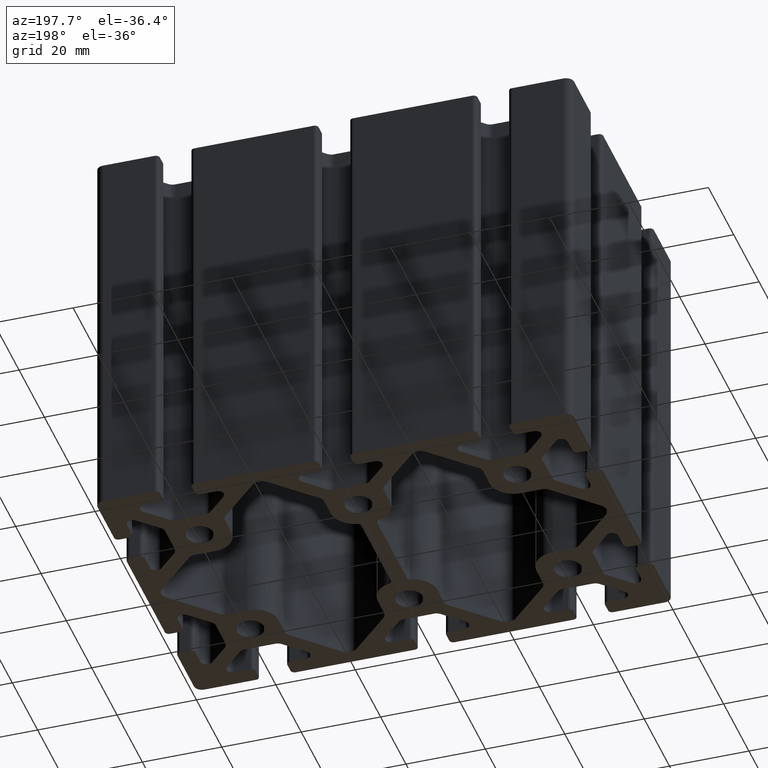
[diagram: clean part render]
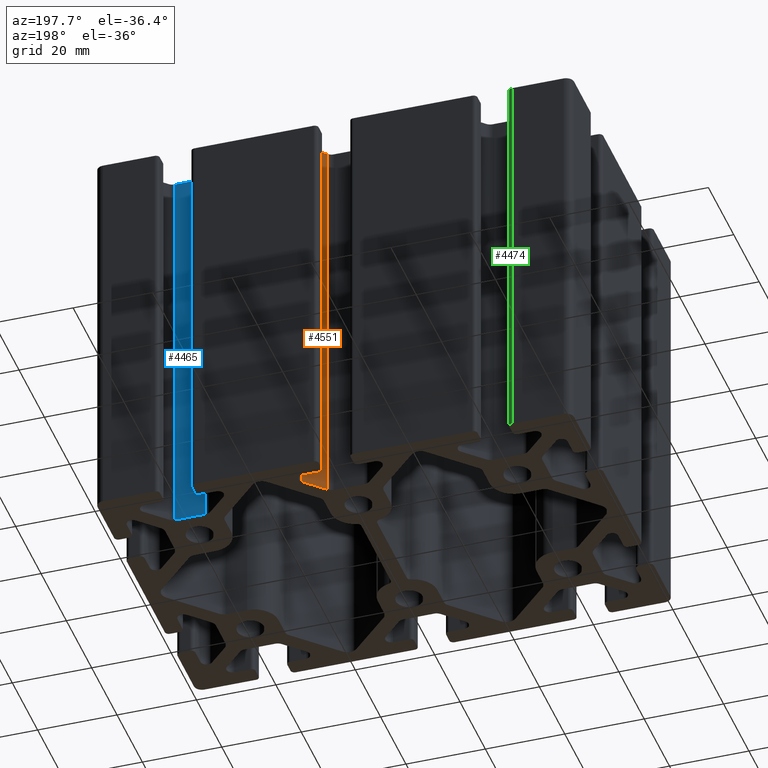
[diagram: same view with three faces highlighted in distinct colors, each labeled with its STEP entity id]
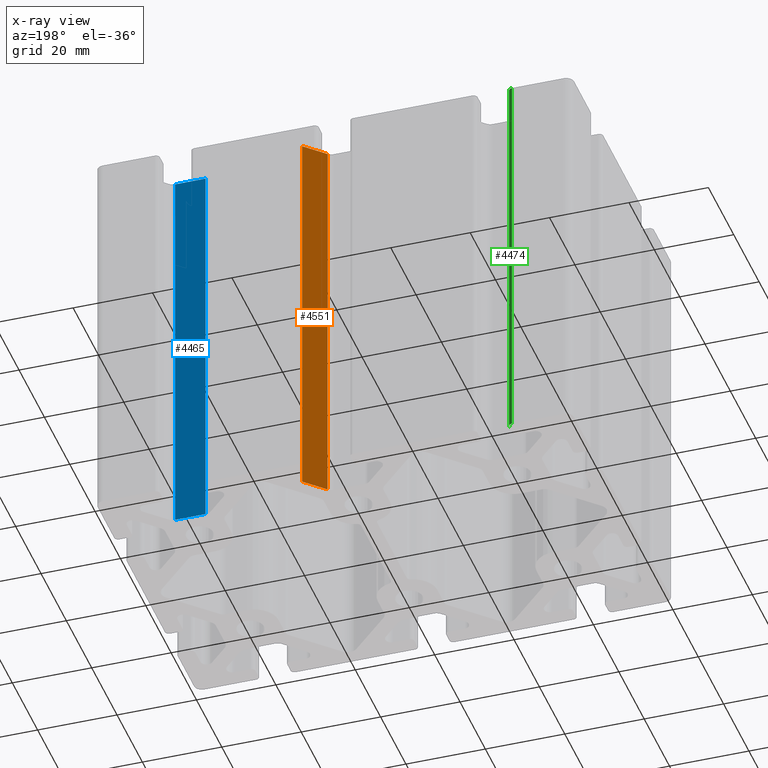
[diagram: x-ray of the same camera — body ghosted, the three highlighted faces saturated]
A machine part, auxiliary view with three faces highlighted in distinct colors.
The next image is the same camera in x-ray (body ghosted, the three faces saturated) — at least one of them is partly hidden behind the body in this view.
Their STEP definitions:

[orange] entity #4551 — the highlighted planar face has unit normal (0.7071, -0.7071, 0).
#108=PLANE('',#4955);
#305=FACE_OUTER_BOUND('',#540,.T.);
#540=EDGE_LOOP('',(#3525,#3526,#3527,#3528));
#936=LINE('',#7444,#1380);
#937=LINE('',#7448,#1381);
#938=LINE('',#7450,#1382);
#939=LINE('',#7451,#1383);
#1380=VECTOR('',#6054,100.);
#1381=VECTOR('',#6059,6.8639610306789);
#1382=VECTOR('',#6060,100.);
#1383=VECTOR('',#6061,6.8639610306789);
#2087=VERTEX_POINT('',#7441);
#2088=VERTEX_POINT('',#7443);
#2089=VERTEX_POINT('',#7447);
#2090=VERTEX_POINT('',#7449);
#2693=EDGE_CURVE('',#2088,#2087,#936,.T.);
#2695=EDGE_CURVE('',#2089,#2087,#937,.T.);
#2696=EDGE_CURVE('',#2090,#2089,#938,.T.);
#2697=EDGE_CURVE('',#2088,#2090,#939,.T.);
#3525=ORIENTED_EDGE('',*,*,#2695,.F.);
#3526=ORIENTED_EDGE('',*,*,#2696,.F.);
#3527=ORIENTED_EDGE('',*,*,#2697,.F.);
#3528=ORIENTED_EDGE('',*,*,#2693,.T.);
#4551=ADVANCED_FACE('',(#305),#108,.F.);
#4955=AXIS2_PLACEMENT_3D('',#7446,#6057,#6058);
#6054=DIRECTION('',(0.,0.,1.));
#6057=DIRECTION('center_axis',(0.707106781186546,-0.707106781186549,0.));
#6058=DIRECTION('ref_axis',(0.707106781186549,0.707106781186546,0.));
#6059=DIRECTION('',(-0.707106781186549,-0.707106781186546,0.));
#6060=DIRECTION('',(0.,0.,1.));
#6061=DIRECTION('',(0.707106781186549,0.707106781186546,0.));
#7441=CARTESIAN_POINT('',(5.25735931288062,28.0857864376269,100.));
#7443=CARTESIAN_POINT('',(5.25735931288062,28.0857864376269,0.));
#7444=CARTESIAN_POINT('',(5.25735931288062,28.0857864376269,0.));
#7446=CARTESIAN_POINT('Origin',(5.25735931288062,28.0857864376269,0.));
#7447=CARTESIAN_POINT('',(10.1109127034739,32.9393398282202,100.));
#7448=CARTESIAN_POINT('',(-3.07842712474627,19.7500000000001,100.));
#7449=CARTESIAN_POINT('',(10.1109127034739,32.9393398282202,0.));
#7450=CARTESIAN_POINT('',(10.1109127034739,32.9393398282202,0.));
#7451=CARTESIAN_POINT('',(-3.07842712474627,19.7500000000001,0.));

[blue] entity #4465 — the highlighted planar face has unit normal (-0, -1, 0).
#68=PLANE('',#4777);
#219=FACE_OUTER_BOUND('',#454,.T.);
#454=EDGE_LOOP('',(#3181,#3182,#3183,#3184));
#765=LINE('',#6913,#1209);
#766=LINE('',#6917,#1210);
#767=LINE('',#6919,#1211);
#768=LINE('',#6920,#1212);
#1209=VECTOR('',#5527,100.);
#1210=VECTOR('',#5532,7.68629150101522);
#1211=VECTOR('',#5533,100.);
#1212=VECTOR('',#5534,7.68629150101522);
#1905=VERTEX_POINT('',#6910);
#1906=VERTEX_POINT('',#6912);
#1907=VERTEX_POINT('',#6916);
#1908=VERTEX_POINT('',#6918);
#2430=EDGE_CURVE('',#1906,#1905,#765,.T.);
#2432=EDGE_CURVE('',#1907,#1905,#766,.T.);
#2433=EDGE_CURVE('',#1908,#1907,#767,.T.);
#2434=EDGE_CURVE('',#1906,#1908,#768,.T.);
#3181=ORIENTED_EDGE('',*,*,#2432,.F.);
#3182=ORIENTED_EDGE('',*,*,#2433,.F.);
#3183=ORIENTED_EDGE('',*,*,#2434,.F.);
#3184=ORIENTED_EDGE('',*,*,#2430,.T.);
#4465=ADVANCED_FACE('',(#219),#68,.F.);
#4777=AXIS2_PLACEMENT_3D('',#6915,#5530,#5531);
#5527=DIRECTION('',(0.,0.,1.));
#5530=DIRECTION('center_axis',(-5.77767847851472E-16,-1.,0.));
#5531=DIRECTION('ref_axis',(1.,-7.105427357601E-16,0.));
#5532=DIRECTION('',(-1.,5.77767847851472E-16,0.));
#5533=DIRECTION('',(0.,0.,1.));
#5534=DIRECTION('',(1.,-5.77767847851472E-16,0.));
#6910=CARTESIAN_POINT('',(36.1568542494924,27.5,100.));
#6912=CARTESIAN_POINT('',(36.1568542494924,27.5,0.));
#6913=CARTESIAN_POINT('',(36.1568542494924,27.5,0.));
#6915=CARTESIAN_POINT('Origin',(36.1568542494924,27.5,0.));
#6916=CARTESIAN_POINT('',(43.8431457505077,27.5,100.));
#6917=CARTESIAN_POINT('',(18.0784271247462,27.5,100.));
#6918=CARTESIAN_POINT('',(43.8431457505077,27.5,0.));
#6919=CARTESIAN_POINT('',(43.8431457505077,27.5,0.));
#6920=CARTESIAN_POINT('',(18.0784271247462,27.5,0.));

[green] entity #4474 — the highlighted cylindrical surface (edge-blend (fillet) strip) has radius 1 mm, axis along (0, 0, 1).
#228=FACE_OUTER_BOUND('',#463,.T.);
#463=EDGE_LOOP('',(#3217,#3218,#3219,#3220));
#784=LINE('',#6968,#1228);
#785=LINE('',#6974,#1229);
#1228=VECTOR('',#5582,100.);
#1229=VECTOR('',#5589,100.);
#1609=CIRCLE('',#4795,1.);
#1610=CIRCLE('',#4796,1.);
#1923=VERTEX_POINT('',#6964);
#1924=VERTEX_POINT('',#6966);
#1925=VERTEX_POINT('',#6970);
#1926=VERTEX_POINT('',#6972);
#2458=EDGE_CURVE('',#1924,#1923,#784,.T.);
#2459=EDGE_CURVE('',#1923,#1925,#1609,.T.);
#2460=EDGE_CURVE('',#1926,#1924,#1610,.T.);
#2461=EDGE_CURVE('',#1925,#1926,#785,.T.);
#3217=ORIENTED_EDGE('',*,*,#2459,.F.);
#3218=ORIENTED_EDGE('',*,*,#2458,.F.);
#3219=ORIENTED_EDGE('',*,*,#2460,.F.);
#3220=ORIENTED_EDGE('',*,*,#2461,.F.);
#4318=CYLINDRICAL_SURFACE('',#4794,1.);
#4474=ADVANCED_FACE('',(#228),#4318,.T.);
#4794=AXIS2_PLACEMENT_3D('',#6969,#5583,#5584);
#4795=AXIS2_PLACEMENT_3D('',#6971,#5585,#5586);
#4796=AXIS2_PLACEMENT_3D('',#6973,#5587,#5588);
#5582=DIRECTION('',(0.,0.,1.));
#5583=DIRECTION('center_axis',(0.,0.,1.));
#5584=DIRECTION('ref_axis',(-1.,0.,0.));
#5585=DIRECTION('center_axis',(0.,0.,1.));
#5586=DIRECTION('ref_axis',(-1.,0.,0.));
#5587=DIRECTION('center_axis',(0.,0.,-1.));
#5588=DIRECTION('ref_axis',(-1.,0.,0.));
#5589=DIRECTION('',(0.,0.,-1.));
#6964=CARTESIAN_POINT('',(-44.0000000000001,39.,100.));
#6966=CARTESIAN_POINT('',(-44.0000000000001,39.,0.));
#6968=CARTESIAN_POINT('',(-44.0000000000001,39.,0.));
#6969=CARTESIAN_POINT('Origin',(-45.,39.,0.));
#6970=CARTESIAN_POINT('',(-45.0000000000001,40.,100.));
#6971=CARTESIAN_POINT('Origin',(-45.,39.,100.));
#6972=CARTESIAN_POINT('',(-45.0000000000001,40.,0.));
#6973=CARTESIAN_POINT('Origin',(-45.,39.,0.));
#6974=CARTESIAN_POINT('',(-45.,40.,0.));